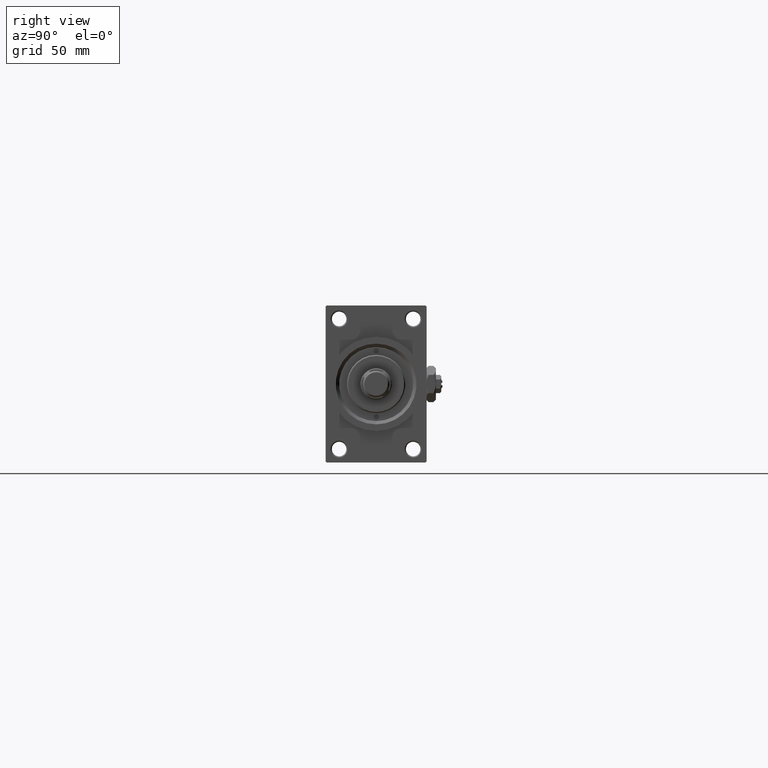
[diagram: clean part render]
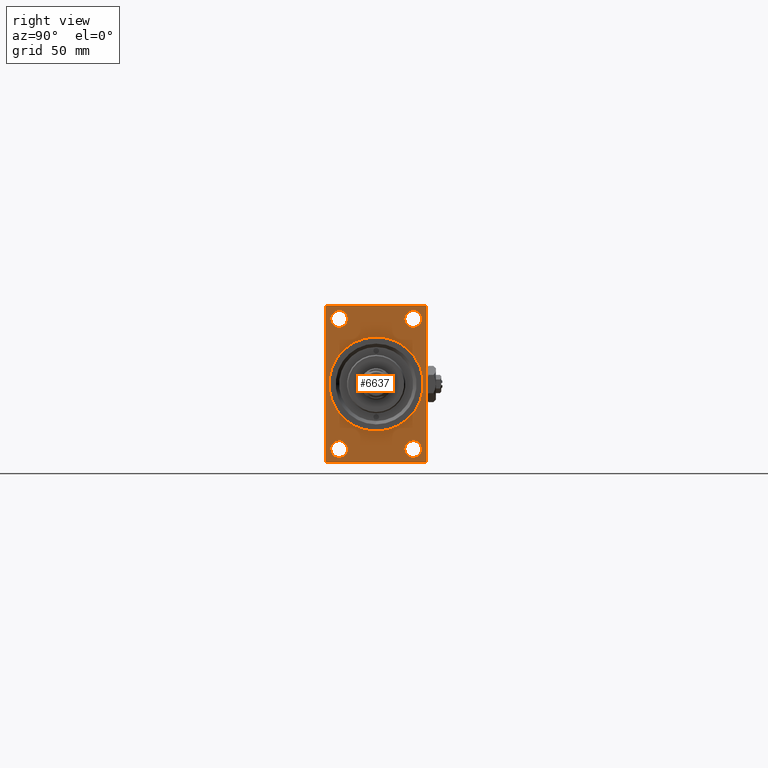
[diagram: same view with one face highlighted and labeled with its STEP entity id]
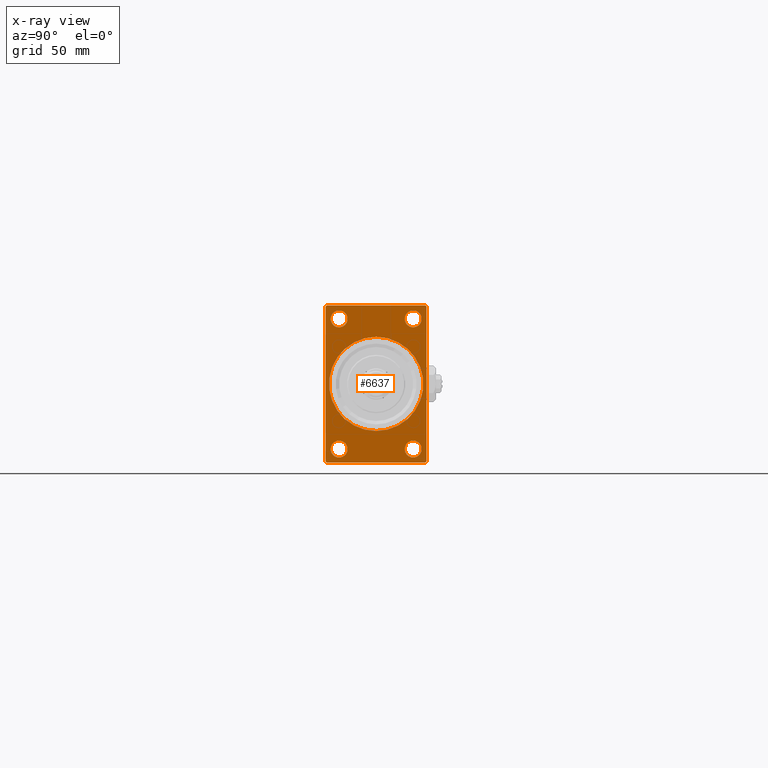
[diagram: x-ray of the same camera — body ghosted, the highlighted face saturated]
A machine part, right view. The second image highlights one B-rep face of the part: STEP entity #6637.
The next image is the same camera in x-ray: the body ghosted, the highlighted face saturated — about 0% of this face is hidden behind the body in this view.
In plain terms, the highlighted planar face has unit normal (-1, 0, 0).
Its self-contained STEP definition (entity closure, byte-faithful):
#27 = EDGE_CURVE ( 'NONE', #7911, #29215, #43340, .T. ) ;
#730 = CARTESIAN_POINT ( 'NONE',  ( 253.0000000000000000, -21.99999999999998934, -35.00000000000000000 ) ) ;
#777 = ORIENTED_EDGE ( 'NONE', *, *, #32410, .T. ) ;
#942 = VECTOR ( 'NONE', #8616, 1000.000000000000000 ) ;
#1160 = ORIENTED_EDGE ( 'NONE', *, *, #36185, .T. ) ;
#1175 = VECTOR ( 'NONE', #9836, 1000.000000000000000 ) ;
#1375 = CARTESIAN_POINT ( 'NONE',  ( 253.0000000000000000, 16.50000000000000000, 25.24999999999977973 ) ) ;
#1667 = LINE ( 'NONE', #17060, #28123 ) ;
#2076 = DIRECTION ( 'NONE',  ( 1.000000000000000000, 0.000000000000000000, 0.000000000000000000 ) ) ;
#2592 = EDGE_CURVE ( 'NONE', #20709, #23597, #24391, .T. ) ;
#2616 = DIRECTION ( 'NONE',  ( 0.000000000000000000, 0.000000000000000000, 1.000000000000000000 ) ) ;
#3174 = CIRCLE ( 'NONE', #45798, 3.750000000000222045 ) ;
#3235 = EDGE_CURVE ( 'NONE', #7911, #34790, #11764, .T. ) ;
#3363 = VERTEX_POINT ( 'NONE', #1375 ) ;
#3604 = DIRECTION ( 'NONE',  ( 1.000000000000000000, 0.000000000000000000, 0.000000000000000000 ) ) ;
#3664 = VERTEX_POINT ( 'NONE', #47384 ) ;
#4217 = CIRCLE ( 'NONE', #17114, 3.750000000000222045 ) ;
#5209 = CIRCLE ( 'NONE', #33349, 3.750000000000222045 ) ;
#5694 = ORIENTED_EDGE ( 'NONE', *, *, #37980, .T. ) ;
#5809 = CARTESIAN_POINT ( 'NONE',  ( 253.0000000000000000, -16.50000000000000000, 25.24999999999978684 ) ) ;
#5881 = AXIS2_PLACEMENT_3D ( 'NONE', #8899, #38883, #31304 ) ;
#6637 = ADVANCED_FACE ( 'NONE', ( #33309, #29772, #48654, #44874, #10676, #10422 ), #25750, .F. ) ;
#7193 = AXIS2_PLACEMENT_3D ( 'NONE', #43485, #36448, #17317 ) ;
#7662 = ORIENTED_EDGE ( 'NONE', *, *, #48572, .T. ) ;
#7756 = CIRCLE ( 'NONE', #25460, 21.00000000000000000 ) ;
#7911 = VERTEX_POINT ( 'NONE', #24152 ) ;
#7969 = CARTESIAN_POINT ( 'NONE',  ( 253.0000000000000000, -16.50000000000000000, -32.75000000000022027 ) ) ;
#8050 = EDGE_LOOP ( 'NONE', ( #18946, #35565 ) ) ;
#8077 = DIRECTION ( 'NONE',  ( -0.000000000000000000, -0.7071067811865279218, -0.7071067811865671127 ) ) ;
#8123 = DIRECTION ( 'NONE',  ( 0.000000000000000000, 0.000000000000000000, -1.000000000000000000 ) ) ;
#8145 = CARTESIAN_POINT ( 'NONE',  ( 253.0000000000000000, 16.50000000000000000, -25.24999999999976907 ) ) ;
#8160 = CARTESIAN_POINT ( 'NONE',  ( 253.0000000000000000, 16.50000000000000000, -28.99999999999999289 ) ) ;
#8331 = CARTESIAN_POINT ( 'NONE',  ( 253.0000000000000000, -22.50000000000000355, 34.50000000000000000 ) ) ;
#8616 = DIRECTION ( 'NONE',  ( -0.000000000000000000, 0.7071067811865279218, 0.7071067811865671127 ) ) ;
#8654 = DIRECTION ( 'NONE',  ( 0.000000000000000000, 0.000000000000000000, -1.000000000000000000 ) ) ;
#8756 = EDGE_LOOP ( 'NONE', ( #5694, #37703, #16991, #31616, #48090, #40994, #777, #46673 ) ) ;
#8899 = CARTESIAN_POINT ( 'NONE',  ( 253.0000000000000000, 16.50000000000000000, 29.00000000000000355 ) ) ;
#9217 = DIRECTION ( 'NONE',  ( 0.000000000000000000, -1.000000000000000000, 0.000000000000000000 ) ) ;
#9769 = CARTESIAN_POINT ( 'NONE',  ( 253.0000000000000000, -16.50000000000000000, -28.99999999999999289 ) ) ;
#9781 = CARTESIAN_POINT ( 'NONE',  ( 253.0000000000000000, -22.50000000000000355, 34.50000000000000000 ) ) ;
#9836 = DIRECTION ( 'NONE',  ( 0.000000000000000000, -1.000000000000000000, 0.000000000000000000 ) ) ;
#10025 = EDGE_CURVE ( 'NONE', #18622, #47482, #7756, .T. ) ;
#10414 = VERTEX_POINT ( 'NONE', #39315 ) ;
#10422 = FACE_OUTER_BOUND ( 'NONE', #8756, .T. ) ;
#10643 = CARTESIAN_POINT ( 'NONE',  ( 253.0000000000000000, -16.50000000000000000, -28.99999999999999289 ) ) ;
#10676 = FACE_BOUND ( 'NONE', #17586, .T. ) ;
#11116 = ORIENTED_EDGE ( 'NONE', *, *, #10025, .F. ) ;
#11595 = CARTESIAN_POINT ( 'NONE',  ( 253.0000000000000000, -22.00000000000000355, -35.00000000000000000 ) ) ;
#11764 = LINE ( 'NONE', #20552, #26031 ) ;
#12782 = VERTEX_POINT ( 'NONE', #19442 ) ;
#12797 = DIRECTION ( 'NONE',  ( 0.000000000000000000, 0.000000000000000000, 1.000000000000000000 ) ) ;
#13374 = DIRECTION ( 'NONE',  ( 0.000000000000000000, 0.000000000000000000, 1.000000000000000000 ) ) ;
#13600 = CIRCLE ( 'NONE', #7193, 3.750000000000222045 ) ;
#13684 = CARTESIAN_POINT ( 'NONE',  ( 253.0000000000000000, 0.000000000000000000, 0.000000000000000000 ) ) ;
#13903 = VERTEX_POINT ( 'NONE', #33548 ) ;
#14468 = VECTOR ( 'NONE', #8077, 1000.000000000000000 ) ;
#15882 = EDGE_LOOP ( 'NONE', ( #23259, #7662 ) ) ;
#16195 = CIRCLE ( 'NONE', #38729, 3.750000000000222045 ) ;
#16216 = DIRECTION ( 'NONE',  ( 0.000000000000000000, 0.000000000000000000, 1.000000000000000000 ) ) ;
#16819 = EDGE_CURVE ( 'NONE', #33767, #31763, #3174, .T. ) ;
#16991 = ORIENTED_EDGE ( 'NONE', *, *, #3235, .F. ) ;
#17060 = CARTESIAN_POINT ( 'NONE',  ( 253.0000000000000000, -22.50000000000000355, 35.00000000000000000 ) ) ;
#17114 = AXIS2_PLACEMENT_3D ( 'NONE', #10643, #25978, #33524 ) ;
#17317 = DIRECTION ( 'NONE',  ( 0.000000000000000000, 0.000000000000000000, 1.000000000000000000 ) ) ;
#17461 = DIRECTION ( 'NONE',  ( 0.000000000000000000, 0.000000000000000000, -1.000000000000000000 ) ) ;
#17586 = EDGE_LOOP ( 'NONE', ( #11116, #28875 ) ) ;
#18224 = DIRECTION ( 'NONE',  ( -1.000000000000000000, 0.000000000000000000, -0.000000000000000000 ) ) ;
#18622 = VERTEX_POINT ( 'NONE', #47964 ) ;
#18741 = CARTESIAN_POINT ( 'NONE',  ( 253.0000000000000000, 21.99999999999999645, 35.00000000000000000 ) ) ;
#18946 = ORIENTED_EDGE ( 'NONE', *, *, #16819, .T. ) ;
#19442 = CARTESIAN_POINT ( 'NONE',  ( 253.0000000000000000, 22.49999999999999645, 34.50000000000000000 ) ) ;
#19938 = CARTESIAN_POINT ( 'NONE',  ( 253.0000000000000000, 22.49999999999999645, -34.50000000000000000 ) ) ;
#19952 = EDGE_CURVE ( 'NONE', #47482, #18622, #26609, .T. ) ;
#20552 = CARTESIAN_POINT ( 'NONE',  ( 253.0000000000000000, 22.49999999999999645, -35.00000000000000000 ) ) ;
#20709 = VERTEX_POINT ( 'NONE', #7969 ) ;
#20995 = EDGE_CURVE ( 'NONE', #31763, #33767, #16195, .T. ) ;
#21108 = EDGE_CURVE ( 'NONE', #12782, #29215, #39362, .T. ) ;
#21530 = DIRECTION ( 'NONE',  ( -1.000000000000000000, -0.000000000000000000, -0.000000000000000000 ) ) ;
#21587 = DIRECTION ( 'NONE',  ( 0.000000000000000000, 0.000000000000000000, 1.000000000000000000 ) ) ;
#22353 = CARTESIAN_POINT ( 'NONE',  ( 253.0000000000000000, 16.50000000000000000, -32.75000000000022027 ) ) ;
#22666 = LINE ( 'NONE', #11595, #26770 ) ;
#23031 = DIRECTION ( 'NONE',  ( -1.000000000000000000, -0.000000000000000000, -0.000000000000000000 ) ) ;
#23063 = AXIS2_PLACEMENT_3D ( 'NONE', #37362, #18224, #26015 ) ;
#23259 = ORIENTED_EDGE ( 'NONE', *, *, #27936, .T. ) ;
#23597 = VERTEX_POINT ( 'NONE', #24787 ) ;
#24101 = CARTESIAN_POINT ( 'NONE',  ( 253.0000000000000000, 16.50000000000000000, -28.99999999999999289 ) ) ;
#24152 = CARTESIAN_POINT ( 'NONE',  ( 253.0000000000000000, 22.00000000000002132, -35.00000000000000000 ) ) ;
#24165 = LINE ( 'NONE', #8331, #14468 ) ;
#24391 = CIRCLE ( 'NONE', #44476, 3.750000000000222045 ) ;
#24787 = CARTESIAN_POINT ( 'NONE',  ( 253.0000000000000000, -16.50000000000000000, -25.24999999999976907 ) ) ;
#24950 = CARTESIAN_POINT ( 'NONE',  ( 253.0000000000000000, 22.49999999999999645, -34.50000000000000000 ) ) ;
#25460 = AXIS2_PLACEMENT_3D ( 'NONE', #13684, #2076, #17461 ) ;
#25750 = PLANE ( 'NONE',  #23063 ) ;
#25978 = DIRECTION ( 'NONE',  ( -1.000000000000000000, -0.000000000000000000, -0.000000000000000000 ) ) ;
#26015 = DIRECTION ( 'NONE',  ( -0.000000000000000000, 0.000000000000000000, 1.000000000000000000 ) ) ;
#26031 = VECTOR ( 'NONE', #9217, 1000.000000000000000 ) ;
#26273 = CARTESIAN_POINT ( 'NONE',  ( 253.0000000000000000, 0.000000000000000000, 0.000000000000000000 ) ) ;
#26609 = CIRCLE ( 'NONE', #33871, 21.00000000000000000 ) ;
#26678 = DIRECTION ( 'NONE',  ( 0.000000000000000000, 0.7071067811865474617, -0.7071067811865474617 ) ) ;
#26770 = VECTOR ( 'NONE', #26678, 1000.000000000000114 ) ;
#27936 = EDGE_CURVE ( 'NONE', #3363, #3664, #48432, .T. ) ;
#28123 = VECTOR ( 'NONE', #28618, 1000.000000000000000 ) ;
#28618 = DIRECTION ( 'NONE',  ( 0.000000000000000000, 0.000000000000000000, -1.000000000000000000 ) ) ;
#28700 = DIRECTION ( 'NONE',  ( -1.000000000000000000, -0.000000000000000000, -0.000000000000000000 ) ) ;
#28875 = ORIENTED_EDGE ( 'NONE', *, *, #19952, .F. ) ;
#29170 = LINE ( 'NONE', #40533, #32039 ) ;
#29215 = VERTEX_POINT ( 'NONE', #19938 ) ;
#29441 = VERTEX_POINT ( 'NONE', #5809 ) ;
#29772 = FACE_BOUND ( 'NONE', #33240, .T. ) ;
#30383 = CARTESIAN_POINT ( 'NONE',  ( 253.0000000000000000, 16.50000000000000000, 29.00000000000000355 ) ) ;
#31304 = DIRECTION ( 'NONE',  ( 0.000000000000000000, 0.000000000000000000, 1.000000000000000000 ) ) ;
#31616 = ORIENTED_EDGE ( 'NONE', *, *, #27, .T. ) ;
#31763 = VERTEX_POINT ( 'NONE', #8145 ) ;
#32039 = VECTOR ( 'NONE', #36744, 1000.000000000000114 ) ;
#32410 = EDGE_CURVE ( 'NONE', #45881, #34770, #33220, .T. ) ;
#32727 = EDGE_CURVE ( 'NONE', #10414, #29441, #5209, .T. ) ;
#33220 = LINE ( 'NONE', #44291, #1175 ) ;
#33240 = EDGE_LOOP ( 'NONE', ( #41924, #40909 ) ) ;
#33309 = FACE_BOUND ( 'NONE', #47163, .T. ) ;
#33349 = AXIS2_PLACEMENT_3D ( 'NONE', #37131, #21530, #2616 ) ;
#33404 = DIRECTION ( 'NONE',  ( -1.000000000000000000, -0.000000000000000000, -0.000000000000000000 ) ) ;
#33493 = VERTEX_POINT ( 'NONE', #9781 ) ;
#33524 = DIRECTION ( 'NONE',  ( 0.000000000000000000, 0.000000000000000000, 1.000000000000000000 ) ) ;
#33548 = CARTESIAN_POINT ( 'NONE',  ( 253.0000000000000000, -22.50000000000000355, -34.50000000000000000 ) ) ;
#33767 = VERTEX_POINT ( 'NONE', #22353 ) ;
#33871 = AXIS2_PLACEMENT_3D ( 'NONE', #26273, #3604, #8123 ) ;
#34770 = VERTEX_POINT ( 'NONE', #46555 ) ;
#34790 = VERTEX_POINT ( 'NONE', #730 ) ;
#34907 = EDGE_CURVE ( 'NONE', #12782, #45881, #29170, .T. ) ;
#35565 = ORIENTED_EDGE ( 'NONE', *, *, #20995, .T. ) ;
#36185 = EDGE_CURVE ( 'NONE', #29441, #10414, #13600, .T. ) ;
#36229 = ORIENTED_EDGE ( 'NONE', *, *, #32727, .T. ) ;
#36448 = DIRECTION ( 'NONE',  ( -1.000000000000000000, -0.000000000000000000, -0.000000000000000000 ) ) ;
#36666 = EDGE_CURVE ( 'NONE', #34770, #33493, #24165, .T. ) ;
#36744 = DIRECTION ( 'NONE',  ( 0.000000000000000000, -0.7071067811865474617, 0.7071067811865474617 ) ) ;
#37131 = CARTESIAN_POINT ( 'NONE',  ( 253.0000000000000000, -16.50000000000000000, 29.00000000000000711 ) ) ;
#37362 = CARTESIAN_POINT ( 'NONE',  ( 253.0000000000000000, 0.000000000000000000, 0.000000000000000000 ) ) ;
#37703 = ORIENTED_EDGE ( 'NONE', *, *, #47998, .T. ) ;
#37980 = EDGE_CURVE ( 'NONE', #33493, #13903, #1667, .T. ) ;
#38729 = AXIS2_PLACEMENT_3D ( 'NONE', #8160, #23031, #16216 ) ;
#38883 = DIRECTION ( 'NONE',  ( -1.000000000000000000, -0.000000000000000000, -0.000000000000000000 ) ) ;
#38982 = DIRECTION ( 'NONE',  ( -1.000000000000000000, -0.000000000000000000, -0.000000000000000000 ) ) ;
#39315 = CARTESIAN_POINT ( 'NONE',  ( 253.0000000000000000, -16.50000000000000000, 32.75000000000022737 ) ) ;
#39362 = LINE ( 'NONE', #47642, #46750 ) ;
#39595 = CARTESIAN_POINT ( 'NONE',  ( 253.0000000000000000, 2.571758278209441661E-15, -21.00000000000000000 ) ) ;
#39613 = AXIS2_PLACEMENT_3D ( 'NONE', #30383, #28700, #13374 ) ;
#40533 = CARTESIAN_POINT ( 'NONE',  ( 253.0000000000000000, 21.99999999999999645, 35.00000000000000000 ) ) ;
#40909 = ORIENTED_EDGE ( 'NONE', *, *, #47596, .T. ) ;
#40994 = ORIENTED_EDGE ( 'NONE', *, *, #34907, .T. ) ;
#41924 = ORIENTED_EDGE ( 'NONE', *, *, #2592, .T. ) ;
#42866 = CIRCLE ( 'NONE', #5881, 3.750000000000225597 ) ;
#43340 = LINE ( 'NONE', #24950, #942 ) ;
#43485 = CARTESIAN_POINT ( 'NONE',  ( 253.0000000000000000, -16.50000000000000000, 29.00000000000000711 ) ) ;
#44291 = CARTESIAN_POINT ( 'NONE',  ( 253.0000000000000000, 22.49999999999999645, 35.00000000000000000 ) ) ;
#44476 = AXIS2_PLACEMENT_3D ( 'NONE', #9769, #33404, #21587 ) ;
#44874 = FACE_BOUND ( 'NONE', #15882, .T. ) ;
#45798 = AXIS2_PLACEMENT_3D ( 'NONE', #24101, #38982, #12797 ) ;
#45881 = VERTEX_POINT ( 'NONE', #18741 ) ;
#46555 = CARTESIAN_POINT ( 'NONE',  ( 253.0000000000000000, -22.00000000000001776, 35.00000000000000000 ) ) ;
#46673 = ORIENTED_EDGE ( 'NONE', *, *, #36666, .T. ) ;
#46750 = VECTOR ( 'NONE', #8654, 1000.000000000000000 ) ;
#47163 = EDGE_LOOP ( 'NONE', ( #1160, #36229 ) ) ;
#47384 = CARTESIAN_POINT ( 'NONE',  ( 253.0000000000000000, 16.50000000000000000, 32.75000000000022737 ) ) ;
#47482 = VERTEX_POINT ( 'NONE', #39595 ) ;
#47596 = EDGE_CURVE ( 'NONE', #23597, #20709, #4217, .T. ) ;
#47642 = CARTESIAN_POINT ( 'NONE',  ( 253.0000000000000000, 22.49999999999999645, 35.00000000000000000 ) ) ;
#47964 = CARTESIAN_POINT ( 'NONE',  ( 253.0000000000000000, 0.000000000000000000, 21.00000000000000000 ) ) ;
#47998 = EDGE_CURVE ( 'NONE', #13903, #34790, #22666, .T. ) ;
#48090 = ORIENTED_EDGE ( 'NONE', *, *, #21108, .F. ) ;
#48432 = CIRCLE ( 'NONE', #39613, 3.750000000000225597 ) ;
#48572 = EDGE_CURVE ( 'NONE', #3664, #3363, #42866, .T. ) ;
#48654 = FACE_BOUND ( 'NONE', #8050, .T. ) ;